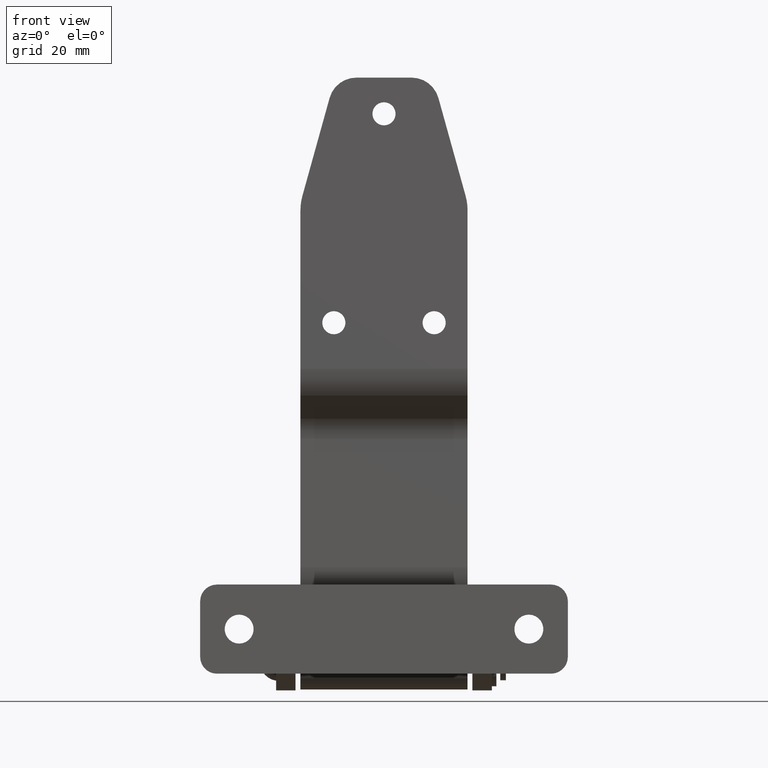
[diagram: clean part render]
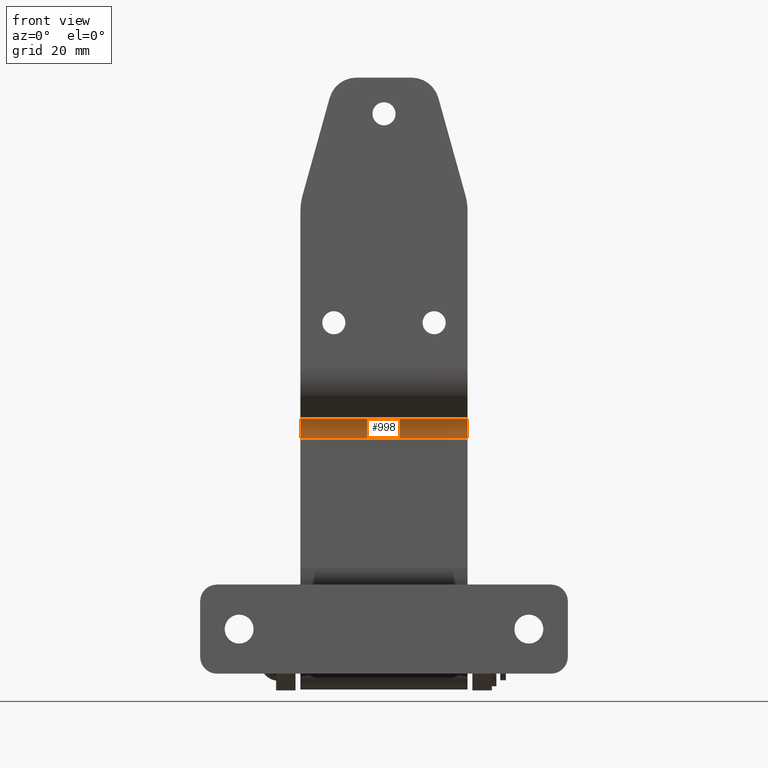
[diagram: same view with one face highlighted and labeled with its STEP entity id]
A machine part, front view. The second image highlights one B-rep face of the part: STEP entity #998.
In plain terms, the highlighted cylindrical surface (edge-blend (fillet) strip) has radius 11 mm, axis along (-1, -0, -0).
Its self-contained STEP definition (entity closure, byte-faithful):
#39 = AXIS2_PLACEMENT_3D ( 'NONE', #2038, #2042, #2043 ) ;
#259 = AXIS2_PLACEMENT_3D ( 'NONE', #2008, #2018, #2019 ) ;
#442 = CARTESIAN_POINT ( 'NONE',  ( 30.00000000000000000, -35.57189302561629100, 87.56648783823479200 ) ) ;
#443 = CARTESIAN_POINT ( 'NONE',  ( 30.00000000000000000, -33.00000000000000700, 80.49775295649359900 ) ) ;
#451 = CARTESIAN_POINT ( 'NONE',  ( -30.00000000000000000, -33.00000000000000700, 80.49775295649359900 ) ) ;
#452 = CARTESIAN_POINT ( 'NONE',  ( -30.00000000000000000, -35.57189302561629100, 87.56648783823479200 ) ) ;
#998 = ADVANCED_FACE ( 'NONE', ( #5247 ), #5204, .F. ) ;
#1082 = EDGE_CURVE ( 'NONE', #2591, #2592, #4208, .T. ) ;
#1090 = EDGE_CURVE ( 'NONE', #2601, #2600, #4213, .T. ) ;
#1186 = CARTESIAN_POINT ( 'NONE',  ( 30.00000000000000000, -44.00000000000002100, 80.49775295649359900 ) ) ;
#1187 = DIRECTION ( 'NONE',  ( -1.000000000000000000, -0.0000000000000000000, -0.0000000000000000000 ) ) ;
#1188 = DIRECTION ( 'NONE',  ( 0.0000000000000000000, 0.0000000000000000000, 1.000000000000000000 ) ) ;
#1877 = EDGE_CURVE ( 'NONE', #2592, #2600, #2485, .T. ) ;
#1878 = EDGE_CURVE ( 'NONE', #2591, #2601, #2488, .T. ) ;
#2008 = CARTESIAN_POINT ( 'NONE',  ( 30.00000000000000000, -44.00000000000002100, 80.49775295649359900 ) ) ;
#2018 = DIRECTION ( 'NONE',  ( -1.000000000000000000, -0.0000000000000000000, -0.0000000000000000000 ) ) ;
#2019 = DIRECTION ( 'NONE',  ( 0.0000000000000000000, 0.0000000000000000000, -1.000000000000000000 ) ) ;
#2038 = CARTESIAN_POINT ( 'NONE',  ( -30.00000000000000000, -44.00000000000002100, 80.49775295649359900 ) ) ;
#2042 = DIRECTION ( 'NONE',  ( -1.000000000000000000, -0.0000000000000000000, -0.0000000000000000000 ) ) ;
#2043 = DIRECTION ( 'NONE',  ( 0.0000000000000000000, 0.0000000000000000000, -1.000000000000000000 ) ) ;
#2485 = LINE ( 'NONE', #2486, #5106 ) ;
#2486 = CARTESIAN_POINT ( 'NONE',  ( 30.00000000000000000, -33.00000000000000700, 80.49775295649359900 ) ) ;
#2487 = DIRECTION ( 'NONE',  ( -1.000000000000000000, -0.0000000000000000000, -0.0000000000000000000 ) ) ;
#2488 = LINE ( 'NONE', #2489, #5102 ) ;
#2489 = CARTESIAN_POINT ( 'NONE',  ( 30.00000000000000000, -35.57189302561629100, 87.56648783823479200 ) ) ;
#2490 = DIRECTION ( 'NONE',  ( -1.000000000000000000, -0.0000000000000000000, -0.0000000000000000000 ) ) ;
#2591 = VERTEX_POINT ( 'NONE', #442 ) ;
#2592 = VERTEX_POINT ( 'NONE', #443 ) ;
#2600 = VERTEX_POINT ( 'NONE', #451 ) ;
#2601 = VERTEX_POINT ( 'NONE', #452 ) ;
#2868 = ORIENTED_EDGE ( 'NONE', *, *, #1082, .F. ) ;
#2870 = ORIENTED_EDGE ( 'NONE', *, *, #1090, .T. ) ;
#2871 = ORIENTED_EDGE ( 'NONE', *, *, #1877, .F. ) ;
#2873 = ORIENTED_EDGE ( 'NONE', *, *, #1878, .T. ) ;
#3318 = EDGE_LOOP ( 'NONE', ( #2870, #2871, #2868, #2873 ) ) ;
#4208 = CIRCLE ( 'NONE', #259, 11.00000000000001100 ) ;
#4213 = CIRCLE ( 'NONE', #39, 11.00000000000001100 ) ;
#5102 = VECTOR ( 'NONE', #2490, 1000.000000000000000 ) ;
#5106 = VECTOR ( 'NONE', #2487, 1000.000000000000000 ) ;
#5204 = CYLINDRICAL_SURFACE ( 'NONE', #5248, 11.00000000000001100 ) ;
#5247 = FACE_OUTER_BOUND ( 'NONE', #3318, .T. ) ;
#5248 = AXIS2_PLACEMENT_3D ( 'NONE', #1186, #1187, #1188 ) ;